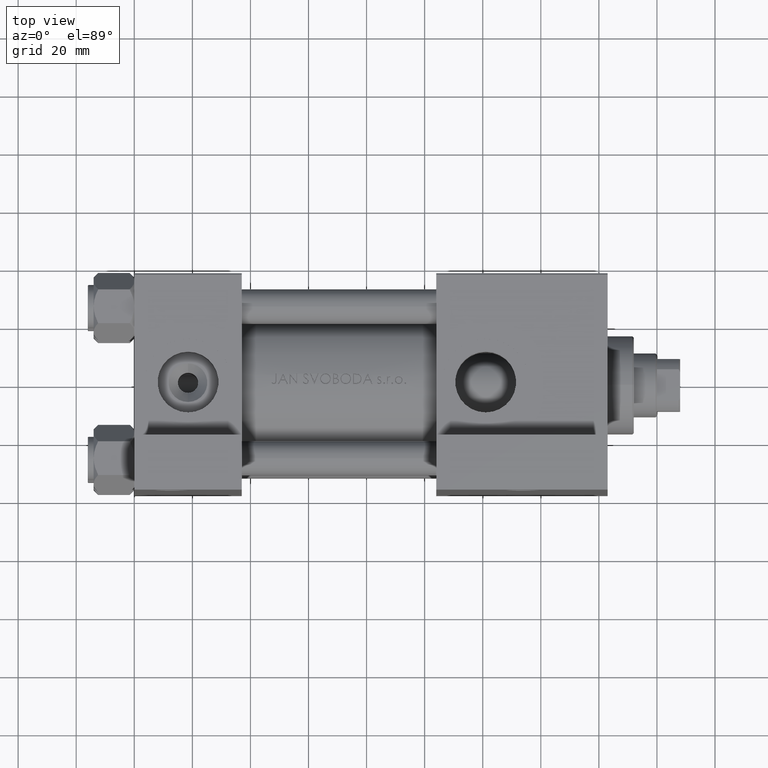
[diagram: clean part render]
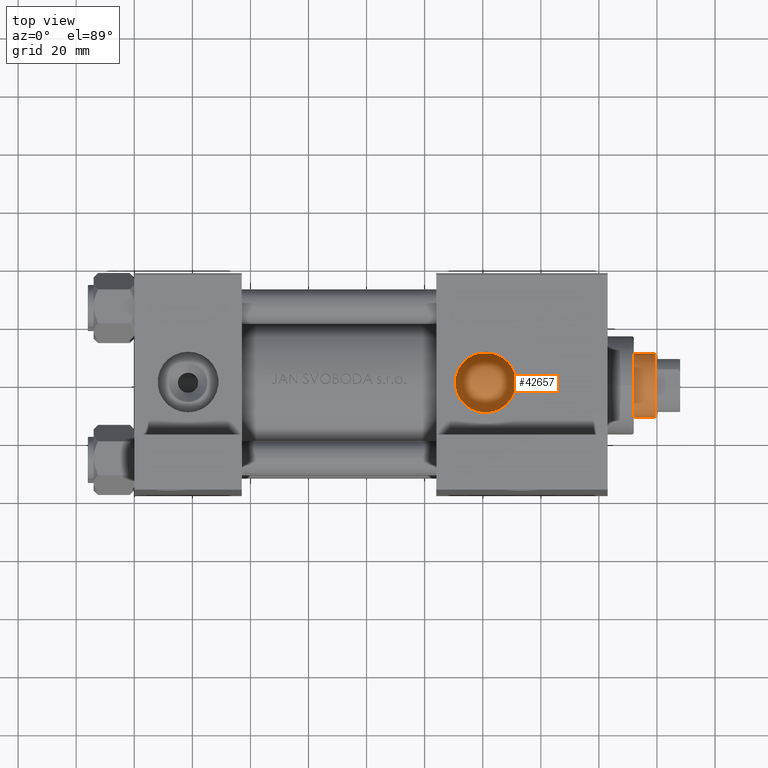
[diagram: same view with one face highlighted and labeled with its STEP entity id]
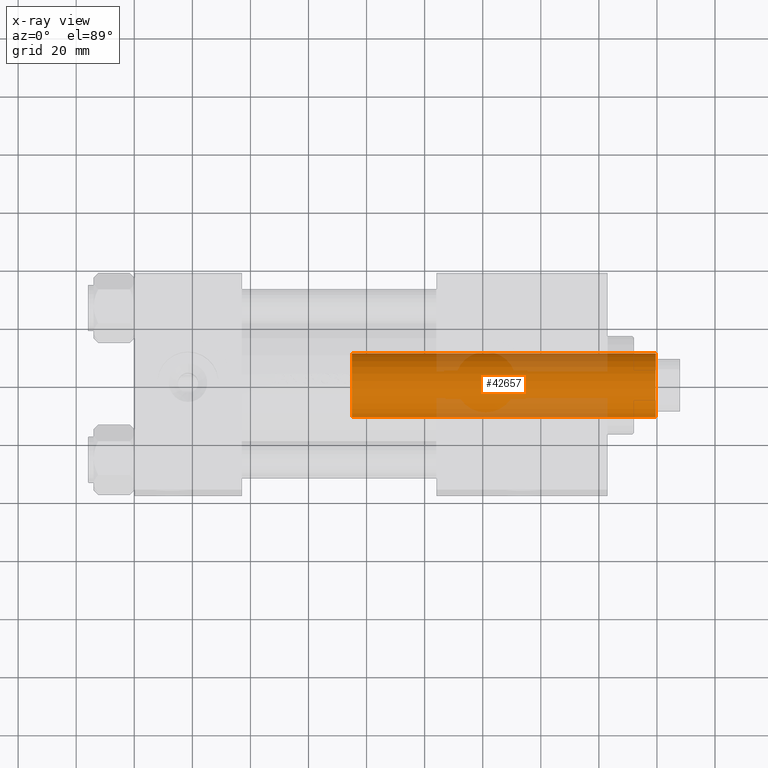
[diagram: x-ray of the same camera — body ghosted, the highlighted face saturated]
A machine part, top view. The second image highlights one B-rep face of the part: STEP entity #42657.
The next image is the same camera in x-ray: the body ghosted, the highlighted face saturated — about 26% of this face is hidden behind the body in this view.
In plain terms, the highlighted cylindrical surface (edge-blend (fillet) strip) has radius 11 mm, axis along (-1, 0, 0).
Its self-contained STEP definition (entity closure, byte-faithful):
#443 = VERTEX_POINT ( 'NONE', #29177 ) ;
#1204 = VERTEX_POINT ( 'NONE', #5044 ) ;
#1550 = EDGE_LOOP ( 'NONE', ( #42062, #37805, #34400, #33600 ) ) ;
#1760 = CARTESIAN_POINT ( 'NONE',  ( 0.000000000000000000, 0.000000000000000000, 38.00000000000000000 ) ) ;
#2026 = DIRECTION ( 'NONE',  ( -0.000000000000000000, -0.000000000000000000, -1.000000000000000000 ) ) ;
#5044 = CARTESIAN_POINT ( 'NONE',  ( -11.00000000000000000, 0.000000000000000000, 38.00000000000000000 ) ) ;
#5657 = CIRCLE ( 'NONE', #31888, 11.00000000000000000 ) ;
#7964 = CARTESIAN_POINT ( 'NONE',  ( 11.00000000000000000, 1.347111479062088405E-15, 142.5000000000000000 ) ) ;
#8957 = CARTESIAN_POINT ( 'NONE',  ( 11.00000000000000000, 1.347111479062088405E-15, 38.00000000000000000 ) ) ;
#9218 = CARTESIAN_POINT ( 'NONE',  ( 0.000000000000000000, 0.000000000000000000, 142.5000000000000000 ) ) ;
#11157 = CARTESIAN_POINT ( 'NONE',  ( 0.000000000000000000, 0.000000000000000000, 143.0000000000000000 ) ) ;
#11667 = AXIS2_PLACEMENT_3D ( 'NONE', #11157, #2026, #14397 ) ;
#12323 = EDGE_CURVE ( 'NONE', #443, #1204, #18892, .T. ) ;
#14397 = DIRECTION ( 'NONE',  ( -1.000000000000000000, 0.000000000000000000, 0.000000000000000000 ) ) ;
#14883 = FACE_OUTER_BOUND ( 'NONE', #1550, .T. ) ;
#15270 = CIRCLE ( 'NONE', #43111, 11.00000000000000000 ) ;
#18493 = EDGE_CURVE ( 'NONE', #25648, #37970, #25431, .T. ) ;
#18892 = LINE ( 'NONE', #26602, #29193 ) ;
#19928 = DIRECTION ( 'NONE',  ( 1.000000000000000000, 0.000000000000000000, 0.000000000000000000 ) ) ;
#21182 = DIRECTION ( 'NONE',  ( 1.000000000000000000, 0.000000000000000000, 0.000000000000000000 ) ) ;
#21873 = CYLINDRICAL_SURFACE ( 'NONE', #11667, 11.00000000000000000 ) ;
#24678 = EDGE_CURVE ( 'NONE', #1204, #37970, #5657, .T. ) ;
#25398 = DIRECTION ( 'NONE',  ( 0.000000000000000000, 0.000000000000000000, 1.000000000000000000 ) ) ;
#25431 = LINE ( 'NONE', #45289, #39636 ) ;
#25648 = VERTEX_POINT ( 'NONE', #7964 ) ;
#26602 = CARTESIAN_POINT ( 'NONE',  ( -11.00000000000000000, 0.000000000000000000, 143.0000000000000000 ) ) ;
#28138 = DIRECTION ( 'NONE',  ( 0.000000000000000000, 0.000000000000000000, -1.000000000000000000 ) ) ;
#28451 = EDGE_CURVE ( 'NONE', #25648, #443, #15270, .T. ) ;
#29177 = CARTESIAN_POINT ( 'NONE',  ( -11.00000000000000000, 0.000000000000000000, 142.5000000000000000 ) ) ;
#29193 = VECTOR ( 'NONE', #34329, 1000.000000000000000 ) ;
#31888 = AXIS2_PLACEMENT_3D ( 'NONE', #1760, #25398, #21182 ) ;
#33600 = ORIENTED_EDGE ( 'NONE', *, *, #24678, .T. ) ;
#34329 = DIRECTION ( 'NONE',  ( -0.000000000000000000, -0.000000000000000000, -1.000000000000000000 ) ) ;
#34400 = ORIENTED_EDGE ( 'NONE', *, *, #12323, .T. ) ;
#37805 = ORIENTED_EDGE ( 'NONE', *, *, #28451, .T. ) ;
#37970 = VERTEX_POINT ( 'NONE', #8957 ) ;
#39636 = VECTOR ( 'NONE', #41540, 1000.000000000000000 ) ;
#41540 = DIRECTION ( 'NONE',  ( -0.000000000000000000, -0.000000000000000000, -1.000000000000000000 ) ) ;
#42062 = ORIENTED_EDGE ( 'NONE', *, *, #18493, .F. ) ;
#42657 = ADVANCED_FACE ( 'NONE', ( #14883 ), #21873, .T. ) ;
#43111 = AXIS2_PLACEMENT_3D ( 'NONE', #9218, #28138, #19928 ) ;
#45289 = CARTESIAN_POINT ( 'NONE',  ( 11.00000000000000000, 1.347111479062088405E-15, 143.0000000000000000 ) ) ;